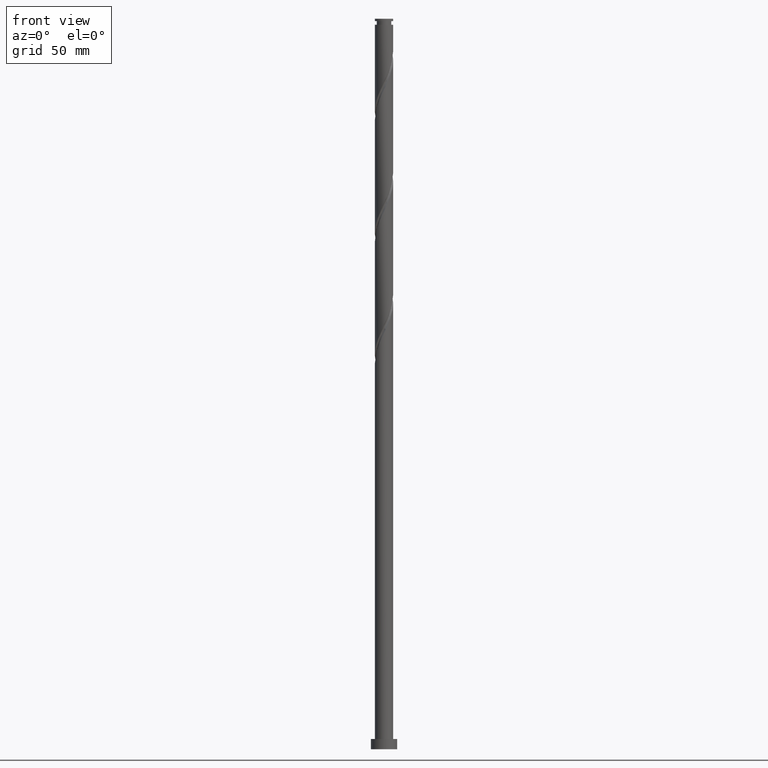
[diagram: clean part render]
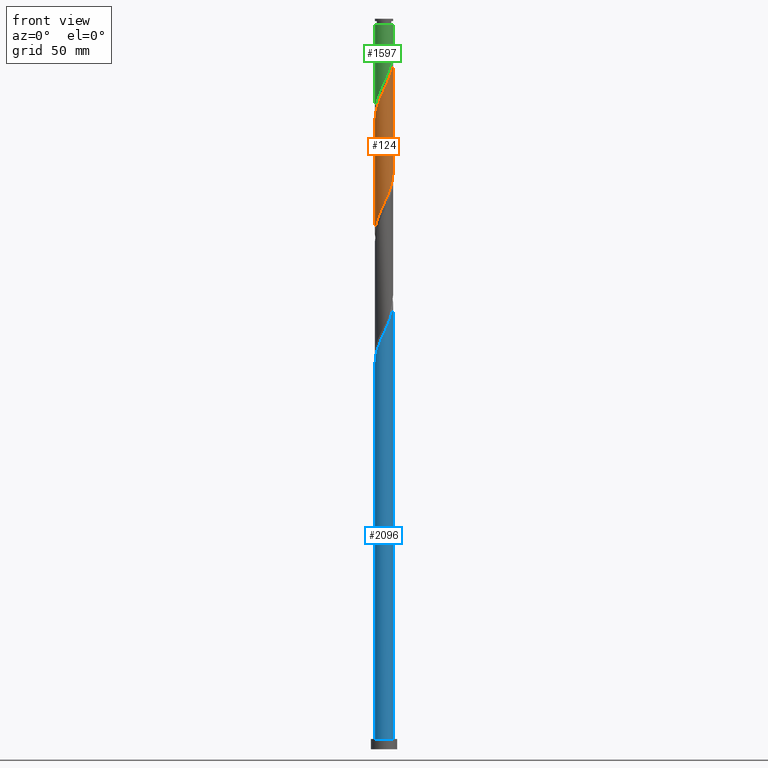
[diagram: same view with three faces highlighted in distinct colors, each labeled with its STEP entity id]
A machine part, front view with three faces highlighted in distinct colors.
Their STEP definitions:

[orange] entity #124 — the highlighted cylindrical surface (edge-blend (fillet) strip) has radius 6.25 mm, axis along (-0, -0, -1).
#17 = CARTESIAN_POINT ( 'NONE',  ( -5.210481989734499386, -3.451576079800707131, 360.4533572271636785 ) ) ;
#26 = CARTESIAN_POINT ( 'NONE',  ( 5.764669318085869243, -2.414764512974176380, 389.0991905604971066 ) ) ;
#47 = CARTESIAN_POINT ( 'NONE',  ( -1.243734296383279592, -6.125000000000000000, 370.8700238938303642 ) ) ;
#88 = EDGE_CURVE ( 'NONE', #2064, #719, #1044, .T. ) ;
#97 = DIRECTION ( 'NONE',  ( -0.000000000000000000, -0.000000000000000000, -1.000000000000000000 ) ) ;
#106 = FACE_OUTER_BOUND ( 'NONE', #1106, .T. ) ;
#124 = ADVANCED_FACE ( 'NONE', ( #106 ), #593, .T. ) ;
#129 = CARTESIAN_POINT ( 'NONE',  ( -1.194875362925339690, -6.134718646121773311, 448.9950238938303073 ) ) ;
#139 = CARTESIAN_POINT ( 'NONE',  ( 2.414764512974176824, -5.764669318085877237, 456.8075238938303642 ) ) ;
#177 = DIRECTION ( 'NONE',  ( -0.000000000000000000, -0.000000000000000000, -1.000000000000000000 ) ) ;
#178 = CARTESIAN_POINT ( 'NONE',  ( -2.982534884002439490, -5.526835772425963356, 366.9637738938303642 ) ) ;
#191 = CARTESIAN_POINT ( 'NONE',  ( -5.550432561628093175, -2.938388396464526764, 359.1512738938303642 ) ) ;
#270 = CARTESIAN_POINT ( 'NONE',  ( 5.550432561628096728, -2.938388396464535202, 465.9221072271636785 ) ) ;
#290 = CARTESIAN_POINT ( 'NONE',  ( -6.250000000000009770, 7.460911258558398260E-15, 430.7131602491668900 ) ) ;
#308 = CARTESIAN_POINT ( 'NONE',  ( 1.243734296383278926, -6.125000000000008882, 454.2033572271636785 ) ) ;
#309 = CARTESIAN_POINT ( 'NONE',  ( -6.250000000000009770, 7.460911258558398260E-15, 430.7131602491668900 ) ) ;
#321 = LINE ( 'NONE', #1830, #1577 ) ;
#336 = CARTESIAN_POINT ( 'NONE',  ( -0.6404744508206484666, -6.247497136254223982, 372.1721072271637354 ) ) ;
#345 = CARTESIAN_POINT ( 'NONE',  ( -6.250000000000000888, 2.911115986695585787E-14, 352.6935542051605239 ) ) ;
#354 = CARTESIAN_POINT ( 'NONE',  ( 5.182805627141495286, -3.492996683547016090, 386.4950238938304210 ) ) ;
#364 = CARTESIAN_POINT ( 'NONE',  ( 6.250000000000001776, 6.297881374636269097E-15, 394.3602208718274369 ) ) ;
#389 = ORIENTED_EDGE ( 'NONE', *, *, #1534, .F. ) ;
#427 = CARTESIAN_POINT ( 'NONE',  ( -6.250000000000007105, -0.01245408358913420964, 430.7395138036840763 ) ) ;
#447 = CARTESIAN_POINT ( 'NONE',  ( 6.017033694790355547, -1.799092411583237183, 468.5262738938305347 ) ) ;
#503 = CARTESIAN_POINT ( 'NONE',  ( 2.368740404023878643, -5.783733128209219920, 378.6825238938303073 ) ) ;
#583 = CARTESIAN_POINT ( 'NONE',  ( -6.249950366853710193, -0.02490806827660202449, 430.7658572271636785 ) ) ;
#593 = CYLINDRICAL_SURFACE ( 'NONE', #648, 6.250000000000000000 ) ;
#594 = CARTESIAN_POINT ( 'NONE',  ( 5.210481989734503827, -3.451576079800713792, 464.6200238938303642 ) ) ;
#648 = AXIS2_PLACEMENT_3D ( 'NONE', #1088, #177, #995 ) ;
#652 = CARTESIAN_POINT ( 'NONE',  ( 1.194875362925335915, -6.134718646121764429, 376.0783572271637354 ) ) ;
#662 = CARTESIAN_POINT ( 'NONE',  ( 4.401769622496961354, -4.436994950466247367, 383.8908572271636785 ) ) ;
#669 = CARTESIAN_POINT ( 'NONE',  ( -6.017033694790346665, -1.799092411583232520, 356.5471072271637922 ) ) ;
#689 = EDGE_CURVE ( 'NONE', #1125, #719, #700, .T. ) ;
#690 = CARTESIAN_POINT ( 'NONE',  ( 6.250000000000001776, 6.297881374636269097E-15, 394.3602208718273801 ) ) ;
#694 = CARTESIAN_POINT ( 'NONE',  ( -4.436994950466247367, -4.401769622496961354, 363.0575238938303642 ) ) ;
#700 =( BOUNDED_CURVE ( )  B_SPLINE_CURVE ( 2, ( #364, #1488, #1466, #1165, #829, #1822, #26, #1791, #354, #1955, #662, #1016, #1185, #1665, #503, #859, #652, #1653, #1006, #336, #47, #984, #1498, #178, #1479, #1812, #694, #1348, #17, #191, #1999, #669, #1313, #1966, #1323 ),
 .UNSPECIFIED., .F., .T. ) 
 B_SPLINE_CURVE_WITH_KNOTS ( ( 3, 2, 2, 2, 2, 2, 2, 2, 2, 2, 2, 2, 2, 2, 2, 2, 2, 3 ),
 ( 0.5545286902180870392, 0.5546875000000000000, 0.5625000000000000000, 0.5703125000000000000, 0.5781250000000000000, 0.5859375000000000000, 0.5937500000000000000, 0.6015625000000000000, 0.6093750000000000000, 0.6171875000000000000, 0.6250000000000000000, 0.6328125000000000000, 0.6406250000000000000, 0.6484375000000000000, 0.6562500000000000000, 0.6640625000000000000, 0.6718750000000000000, 0.6795286902180873723 ),
 .UNSPECIFIED. ) 
 CURVE ( )  GEOMETRIC_REPRESENTATION_ITEM ( )  RATIONAL_B_SPLINE_CURVE ( ( 0.9089165573359441197, 0.9090019243628489898, 0.9090909090909409240, 0.9047133878838470311, 0.9090909090909409240, 0.9047133878838470311, 0.9090909090909409240, 0.9047133878838470311, 0.9090909090909409240, 0.9047133878838470311, 0.9090909090909409240, 0.9047133878838470311, 0.9090909090909409240, 0.9047133878838470311, 0.9090909090909409240, 0.9047133878838470311, 0.9090909090909409240, 0.9047133878838470311, 0.9090909090909409240, 0.9047133878838470311, 0.9090909090909409240, 0.9047133878838470311, 0.9090909090909409240, 0.9047133878838470311, 0.9090909090909409240, 0.9047133878838470311, 0.9090909090909409240, 0.9047133878838470311, 0.9090909090909409240, 0.9047133878838470311, 0.9090909090909409240, 0.9047133878838470311, 0.9090909090909409240, 0.9048023726119387433, 0.9089165573359445638 ) ) 
 REPRESENTATION_ITEM ( '' )  );
#719 = VERTEX_POINT ( 'NONE', #345 ) ;
#760 = CARTESIAN_POINT ( 'NONE',  ( 4.436994950466251808, -4.401769622496967571, 462.0158572271636785 ) ) ;
#772 = CARTESIAN_POINT ( 'NONE',  ( -6.247497136254231975, -0.6404744508206471343, 432.0679405604971066 ) ) ;
#781 = CARTESIAN_POINT ( 'NONE',  ( 5.783733128209226138, -2.368740404023883084, 467.2241905604969929 ) ) ;
#791 = CARTESIAN_POINT ( 'NONE',  ( 4.870531417840913591, -3.964763763136895491, 463.3179405604971066 ) ) ;
#829 = CARTESIAN_POINT ( 'NONE',  ( 6.125000000000000000, -1.243734296383280258, 391.7033572271637354 ) ) ;
#859 = CARTESIAN_POINT ( 'NONE',  ( 1.799092411583232298, -6.017033694790346665, 377.3804405604972203 ) ) ;
#916 = CARTESIAN_POINT ( 'NONE',  ( 6.134718646121773311, -1.194875362925343243, 469.8283572271636785 ) ) ;
#930 = CARTESIAN_POINT ( 'NONE',  ( -3.451576079800712904, -5.210481989734503827, 443.7866905604970498 ) ) ;
#940 = CARTESIAN_POINT ( 'NONE',  ( -5.764669318085877237, -2.414764512974176824, 435.9741905604970498 ) ) ;
#960 = CARTESIAN_POINT ( 'NONE',  ( -4.401769622496965795, -4.436994950466251808, 441.1825238938303073 ) ) ;
#984 = CARTESIAN_POINT ( 'NONE',  ( -1.846994141945911716, -6.002502863745775130, 369.5679405604971066 ) ) ;
#995 = DIRECTION ( 'NONE',  ( -1.000000000000000000, 0.000000000000000000, 0.000000000000000000 ) ) ;
#1006 = CARTESIAN_POINT ( 'NONE',  ( -0.02490806827660287104, -6.249950366853703088, 373.4741905604971066 ) ) ;
#1016 = CARTESIAN_POINT ( 'NONE',  ( 3.964763763136884833, -4.870531417840912702, 382.5887738938304210 ) ) ;
#1044 = LINE ( 'NONE', #1902, #1911 ) ;
#1079 = CARTESIAN_POINT ( 'NONE',  ( 0.6404744508206466902, -6.247497136254231975, 452.9012738938303642 ) ) ;
#1088 = CARTESIAN_POINT ( 'NONE',  ( 0.000000000000000000, 0.000000000000000000, 500.0000000000000000 ) ) ;
#1089 = CARTESIAN_POINT ( 'NONE',  ( 3.492996683547016090, -5.182805627141505944, 459.4116905604970498 ) ) ;
#1106 = EDGE_LOOP ( 'NONE', ( #1631, #389, #1641, #2094 ) ) ;
#1125 = VERTEX_POINT ( 'NONE', #690 ) ;
#1165 = CARTESIAN_POINT ( 'NONE',  ( 6.247497136254223093, -0.6404744508206514642, 393.0054405604971066 ) ) ;
#1185 = CARTESIAN_POINT ( 'NONE',  ( 3.451576079800706687, -5.210481989734500274, 381.2866905604971066 ) ) ;
#1255 = CARTESIAN_POINT ( 'NONE',  ( 0.02490806827660032446, -6.249950366853710193, 451.5991905604970498 ) ) ;
#1276 = CARTESIAN_POINT ( 'NONE',  ( 4.003458483091592690, -4.838775481857040539, 460.7137738938303642 ) ) ;
#1279 = EDGE_CURVE ( 'NONE', #1940, #1125, #321, .T. ) ;
#1313 = CARTESIAN_POINT ( 'NONE',  ( -6.134718646121763541, -1.194875362925336137, 355.2450238938304210 ) ) ;
#1323 = CARTESIAN_POINT ( 'NONE',  ( -6.250000000000001776, 2.911115986695585787E-14, 352.6935542051605239 ) ) ;
#1348 = CARTESIAN_POINT ( 'NONE',  ( -4.870531417840910038, -3.964763763136889274, 361.7554405604971635 ) ) ;
#1367 =( BOUNDED_CURVE ( )  B_SPLINE_CURVE ( 2, ( #290, #427, #583, #772, #1416, #1753, #940, #1394, #1885, #2074, #960, #1590, #930, #1763, #1581, #1404, #129, #2057, #1255, #1079, #308, #1721, #139, #1905, #1089, #1276, #760, #791, #594, #270, #781, #447, #916, #1426, #1732 ),
 .UNSPECIFIED., .F., .T. ) 
 B_SPLINE_CURVE_WITH_KNOTS ( ( 3, 2, 2, 2, 2, 2, 2, 2, 2, 2, 2, 2, 2, 2, 2, 2, 2, 3 ),
 ( 0.5545286902180872612, 0.5546875000000000000, 0.5625000000000000000, 0.5703125000000000000, 0.5781250000000000000, 0.5859375000000000000, 0.5937500000000000000, 0.6015625000000000000, 0.6093750000000000000, 0.6171875000000000000, 0.6250000000000000000, 0.6328125000000000000, 0.6406250000000000000, 0.6484375000000000000, 0.6562500000000000000, 0.6640625000000000000, 0.6718750000000000000, 0.6795286902180870392 ),
 .UNSPECIFIED. ) 
 CURVE ( )  GEOMETRIC_REPRESENTATION_ITEM ( )  RATIONAL_B_SPLINE_CURVE ( ( 0.9089165573359503369, 0.9090019243628550960, 0.9090909090909468082, 0.9047133878838528043, 0.9090909090909468082, 0.9047133878838528043, 0.9090909090909468082, 0.9047133878838528043, 0.9090909090909468082, 0.9047133878838528043, 0.9090909090909468082, 0.9047133878838528043, 0.9090909090909468082, 0.9047133878838528043, 0.9090909090909468082, 0.9047133878838528043, 0.9090909090909468082, 0.9047133878838528043, 0.9090909090909468082, 0.9047133878838528043, 0.9090909090909468082, 0.9047133878838528043, 0.9090909090909468082, 0.9047133878838528043, 0.9090909090909468082, 0.9047133878838528043, 0.9090909090909468082, 0.9047133878838528043, 0.9090909090909468082, 0.9047133878838528043, 0.9090909090909468082, 0.9047133878838528043, 0.9090909090909468082, 0.9048023726119447385, 0.9089165573359500039 ) ) 
 REPRESENTATION_ITEM ( '' )  );
#1394 = CARTESIAN_POINT ( 'NONE',  ( -5.526835772425973126, -2.982534884002440823, 437.2762738938303642 ) ) ;
#1404 = CARTESIAN_POINT ( 'NONE',  ( -1.799092411583237183, -6.017033694790354659, 447.6929405604970498 ) ) ;
#1416 = CARTESIAN_POINT ( 'NONE',  ( -6.125000000000008882, -1.243734296383279592, 433.3700238938302505 ) ) ;
#1426 = CARTESIAN_POINT ( 'NONE',  ( 6.250000000000005329, -0.6029988433061495012, 471.1038468104176218 ) ) ;
#1466 = CARTESIAN_POINT ( 'NONE',  ( 6.249950366853703088, -0.02490806827660308961, 394.3075238938304210 ) ) ;
#1479 = CARTESIAN_POINT ( 'NONE',  ( -3.492996683547012982, -5.182805627141497062, 365.6616905604971066 ) ) ;
#1488 = CARTESIAN_POINT ( 'NONE',  ( 6.250000000000000888, -0.01245408358911791191, 394.3338673173100233 ) ) ;
#1498 = CARTESIAN_POINT ( 'NONE',  ( -2.414764512974176380, -5.764669318085871019, 368.2658572271637922 ) ) ;
#1534 = EDGE_CURVE ( 'NONE', #2064, #1940, #1367, .T. ) ;
#1561 = DIRECTION ( 'NONE',  ( -0.000000000000000000, -0.000000000000000000, -1.000000000000000000 ) ) ;
#1577 = VECTOR ( 'NONE', #97, 1000.000000000000000 ) ;
#1581 = CARTESIAN_POINT ( 'NONE',  ( -2.368740404023883084, -5.783733128209227026, 446.3908572271636785 ) ) ;
#1590 = CARTESIAN_POINT ( 'NONE',  ( -3.964763763136895491, -4.870531417840916255, 442.4846072271636785 ) ) ;
#1613 = CARTESIAN_POINT ( 'NONE',  ( 6.250000000000007994, -8.294043242714179660E-16, 472.3798269158335188 ) ) ;
#1631 = ORIENTED_EDGE ( 'NONE', *, *, #1279, .F. ) ;
#1641 = ORIENTED_EDGE ( 'NONE', *, *, #88, .T. ) ;
#1653 = CARTESIAN_POINT ( 'NONE',  ( 0.5906583142674398657, -6.252403597453183082, 374.7762738938305347 ) ) ;
#1665 = CARTESIAN_POINT ( 'NONE',  ( 2.938388396464525876, -5.550432561628093175, 379.9846072271638491 ) ) ;
#1721 = CARTESIAN_POINT ( 'NONE',  ( 1.846994141945911938, -6.002502863745784900, 455.5054405604971066 ) ) ;
#1732 = CARTESIAN_POINT ( 'NONE',  ( 6.250000000000007994, -8.294043242714179660E-16, 472.3798269158335756 ) ) ;
#1753 = CARTESIAN_POINT ( 'NONE',  ( -6.002502863745784900, -1.846994141945912382, 434.6721072271637354 ) ) ;
#1763 = CARTESIAN_POINT ( 'NONE',  ( -2.938388396464533425, -5.550432561628098505, 445.0887738938304210 ) ) ;
#1791 = CARTESIAN_POINT ( 'NONE',  ( 5.526835772425963356, -2.982534884002439490, 387.7971072271638491 ) ) ;
#1812 = CARTESIAN_POINT ( 'NONE',  ( -4.003458483091587361, -4.838775481857032545, 364.3596072271636785 ) ) ;
#1822 = CARTESIAN_POINT ( 'NONE',  ( 6.002502863745776018, -1.846994141945909940, 390.4012738938304210 ) ) ;
#1830 = CARTESIAN_POINT ( 'NONE',  ( 6.250000000000000000, 7.654042494670957606E-16, 500.0000000000000000 ) ) ;
#1885 = CARTESIAN_POINT ( 'NONE',  ( -5.182805627141505944, -3.492996683547016534, 438.5783572271636785 ) ) ;
#1902 = CARTESIAN_POINT ( 'NONE',  ( -6.250000000000000000, 0.000000000000000000, 500.0000000000000000 ) ) ;
#1905 = CARTESIAN_POINT ( 'NONE',  ( 2.982534884002440823, -5.526835772425973126, 458.1096072271637922 ) ) ;
#1911 = VECTOR ( 'NONE', #1561, 1000.000000000000000 ) ;
#1940 = VERTEX_POINT ( 'NONE', #1613 ) ;
#1955 = CARTESIAN_POINT ( 'NONE',  ( 4.838775481857031657, -4.003458483091587361, 385.1929405604971066 ) ) ;
#1966 = CARTESIAN_POINT ( 'NONE',  ( -6.250000000000003553, -0.6029988433061200803, 353.9695343105765915 ) ) ;
#1999 = CARTESIAN_POINT ( 'NONE',  ( -5.783733128209219920, -2.368740404023878643, 357.8491905604969929 ) ) ;
#2057 = CARTESIAN_POINT ( 'NONE',  ( -0.5906583142674434184, -6.252403597453189299, 450.2971072271636785 ) ) ;
#2064 = VERTEX_POINT ( 'NONE', #309 ) ;
#2074 = CARTESIAN_POINT ( 'NONE',  ( -4.838775481857040539, -4.003458483091592690, 439.8804405604969929 ) ) ;
#2094 = ORIENTED_EDGE ( 'NONE', *, *, #689, .F. ) ;

[blue] entity #2096 — the highlighted cylindrical surface (edge-blend (fillet) strip) has radius 6.25 mm, axis along (-0, -0, -1).
#9 = CARTESIAN_POINT ( 'NONE',  ( 5.210481989734503827, -3.451576079800713792, 297.9533572271637354 ) ) ;
#15 = DIRECTION ( 'NONE',  ( 1.000000000000000000, 0.000000000000000000, 0.000000000000000000 ) ) ;
#16 = CARTESIAN_POINT ( 'NONE',  ( -5.182805627141505944, -3.492996683547016534, 271.9116905604970498 ) ) ;
#38 = VERTEX_POINT ( 'NONE', #340 ) ;
#42 = CARTESIAN_POINT ( 'NONE',  ( 4.003458483091592690, -4.838775481857040539, 294.0471072271637354 ) ) ;
#52 = CARTESIAN_POINT ( 'NONE',  ( 4.436994950466251808, -4.401769622496967571, 295.3491905604971066 ) ) ;
#105 = CARTESIAN_POINT ( 'NONE',  ( -4.401769622496965795, -4.436994950466251808, 274.5158572271636785 ) ) ;
#118 = CARTESIAN_POINT ( 'NONE',  ( 0.02490806827660032446, -6.249950366853710193, 284.9325238938303642 ) ) ;
#152 = DIRECTION ( 'NONE',  ( -1.000000000000000000, 0.000000000000000000, 0.000000000000000000 ) ) ;
#176 = EDGE_CURVE ( 'NONE', #38, #1453, #484, .T. ) ;
#185 = CARTESIAN_POINT ( 'NONE',  ( 5.783733128209226138, -2.368740404023883084, 300.5575238938303642 ) ) ;
#238 = DIRECTION ( 'NONE',  ( -0.000000000000000000, -0.000000000000000000, -1.000000000000000000 ) ) ;
#295 = ORIENTED_EDGE ( 'NONE', *, *, #1188, .F. ) ;
#331 = DIRECTION ( 'NONE',  ( -0.000000000000000000, -0.000000000000000000, -1.000000000000000000 ) ) ;
#335 = DIRECTION ( 'NONE',  ( 0.000000000000000000, 0.000000000000000000, 1.000000000000000000 ) ) ;
#340 = CARTESIAN_POINT ( 'NONE',  ( -6.250000000000009770, 7.460911258558398260E-15, 264.0464935825003181 ) ) ;
#363 = CARTESIAN_POINT ( 'NONE',  ( -5.526835772425973126, -2.982534884002440823, 270.6096072271637354 ) ) ;
#414 = CARTESIAN_POINT ( 'NONE',  ( -3.451576079800712904, -5.210481989734503827, 277.1200238938303642 ) ) ;
#436 = CARTESIAN_POINT ( 'NONE',  ( 6.250000000000008882, 7.878409165607379030E-15, 305.7131602491668900 ) ) ;
#471 = DIRECTION ( 'NONE',  ( -0.000000000000000000, -0.000000000000000000, -1.000000000000000000 ) ) ;
#484 =( BOUNDED_CURVE ( )  B_SPLINE_CURVE ( 2, ( #1174, #1965, #642, #1478, #502, #1294, #1821, #363, #16, #1873, #105, #1730, #414, #747, #1579, #1263, #581, #1232, #118, #1588, #759, #770, #1414, #602, #1253, #42, #52, #1234, #9, #674, #185, #833, #688, #1341, #858 ),
 .UNSPECIFIED., .F., .T. ) 
 B_SPLINE_CURVE_WITH_KNOTS ( ( 3, 2, 2, 2, 2, 2, 2, 2, 2, 2, 2, 2, 2, 2, 2, 2, 2, 3 ),
 ( 0.05452869021808727512, 0.05468750000000000000, 0.06250000000000000000, 0.07031250000000000000, 0.07812500000000000000, 0.08593750000000000000, 0.09375000000000000000, 0.1015625000000000000, 0.1093750000000000000, 0.1171875000000000000, 0.1250000000000000000, 0.1328125000000000000, 0.1406250000000000000, 0.1484375000000000000, 0.1562500000000000000, 0.1640625000000000000, 0.1718750000000000000, 0.1795286902180874278 ),
 .UNSPECIFIED. ) 
 CURVE ( )  GEOMETRIC_REPRESENTATION_ITEM ( )  RATIONAL_B_SPLINE_CURVE ( ( 0.9089165573359502259, 0.9090019243628549850, 0.9090909090909468082, 0.9047133878838528043, 0.9090909090909468082, 0.9047133878838528043, 0.9090909090909468082, 0.9047133878838528043, 0.9090909090909468082, 0.9047133878838528043, 0.9090909090909468082, 0.9047133878838528043, 0.9090909090909468082, 0.9047133878838528043, 0.9090909090909468082, 0.9047133878838528043, 0.9090909090909468082, 0.9047133878838528043, 0.9090909090909468082, 0.9047133878838528043, 0.9090909090909468082, 0.9047133878838528043, 0.9090909090909468082, 0.9047133878838528043, 0.9090909090909468082, 0.9047133878838528043, 0.9090909090909468082, 0.9047133878838528043, 0.9090909090909468082, 0.9047133878838528043, 0.9090909090909468082, 0.9047133878838528043, 0.9090909090909468082, 0.9048023726119445165, 0.9089165573359504480 ) ) 
 REPRESENTATION_ITEM ( '' )  );
#497 = EDGE_CURVE ( 'NONE', #1930, #1926, #793, .T. ) ;
#502 = CARTESIAN_POINT ( 'NONE',  ( -6.125000000000008882, -1.243734296383279592, 266.7033572271637354 ) ) ;
#535 = ORIENTED_EDGE ( 'NONE', *, *, #176, .F. ) ;
#581 = CARTESIAN_POINT ( 'NONE',  ( -1.194875362925339690, -6.134718646121773311, 282.3283572271636785 ) ) ;
#602 = CARTESIAN_POINT ( 'NONE',  ( 2.982534884002440823, -5.526835772425973126, 291.4429405604971066 ) ) ;
#606 = CARTESIAN_POINT ( 'NONE',  ( 6.250000000000000000, 7.654042494670957606E-16, 7.000000000000000000 ) ) ;
#618 = ORIENTED_EDGE ( 'NONE', *, *, #1307, .T. ) ;
#623 = ORIENTED_EDGE ( 'NONE', *, *, #497, .T. ) ;
#642 = CARTESIAN_POINT ( 'NONE',  ( -6.249950366853710193, -0.02490806827660202449, 264.0991905604971066 ) ) ;
#674 = CARTESIAN_POINT ( 'NONE',  ( 5.550432561628096728, -2.938388396464535202, 299.2554405604970498 ) ) ;
#688 = CARTESIAN_POINT ( 'NONE',  ( 6.134718646121773311, -1.194875362925343243, 303.1616905604970498 ) ) ;
#747 = CARTESIAN_POINT ( 'NONE',  ( -2.938388396464533425, -5.550432561628098505, 278.4221072271637354 ) ) ;
#752 = CARTESIAN_POINT ( 'NONE',  ( 0.000000000000000000, 0.000000000000000000, 7.000000000000000000 ) ) ;
#759 = CARTESIAN_POINT ( 'NONE',  ( 1.243734296383278926, -6.125000000000008882, 287.5366905604969929 ) ) ;
#770 = CARTESIAN_POINT ( 'NONE',  ( 1.846994141945911938, -6.002502863745784900, 288.8387738938303642 ) ) ;
#793 = CIRCLE ( 'NONE', #927, 6.250000000000000000 ) ;
#833 = CARTESIAN_POINT ( 'NONE',  ( 6.017033694790355547, -1.799092411583237183, 301.8596072271637354 ) ) ;
#858 = CARTESIAN_POINT ( 'NONE',  ( 6.250000000000008882, 7.878409165607379030E-15, 305.7131602491668900 ) ) ;
#927 = AXIS2_PLACEMENT_3D ( 'NONE', #752, #335, #15 ) ;
#1022 = LINE ( 'NONE', #1181, #1438 ) ;
#1174 = CARTESIAN_POINT ( 'NONE',  ( -6.250000000000008882, 7.460911258558398260E-15, 264.0464935825003181 ) ) ;
#1181 = CARTESIAN_POINT ( 'NONE',  ( -6.250000000000000000, 0.000000000000000000, 500.0000000000000000 ) ) ;
#1188 = EDGE_CURVE ( 'NONE', #1453, #1926, #1485, .T. ) ;
#1232 = CARTESIAN_POINT ( 'NONE',  ( -0.5906583142674434184, -6.252403597453189299, 283.6304405604971066 ) ) ;
#1234 = CARTESIAN_POINT ( 'NONE',  ( 4.870531417840913591, -3.964763763136895491, 296.6512738938303642 ) ) ;
#1237 = CYLINDRICAL_SURFACE ( 'NONE', #1547, 6.250000000000000000 ) ;
#1253 = CARTESIAN_POINT ( 'NONE',  ( 3.492996683547016090, -5.182805627141505944, 292.7450238938303642 ) ) ;
#1263 = CARTESIAN_POINT ( 'NONE',  ( -1.799092411583237183, -6.017033694790354659, 281.0262738938303642 ) ) ;
#1278 = FACE_OUTER_BOUND ( 'NONE', #1462, .T. ) ;
#1294 = CARTESIAN_POINT ( 'NONE',  ( -6.002502863745784900, -1.846994141945912382, 268.0054405604970498 ) ) ;
#1307 = EDGE_CURVE ( 'NONE', #38, #1930, #1022, .T. ) ;
#1341 = CARTESIAN_POINT ( 'NONE',  ( 6.250000000000012434, -0.6029988433061194142, 304.4371801437509362 ) ) ;
#1414 = CARTESIAN_POINT ( 'NONE',  ( 2.414764512974176824, -5.764669318085877237, 290.1408572271636785 ) ) ;
#1438 = VECTOR ( 'NONE', #238, 1000.000000000000000 ) ;
#1453 = VERTEX_POINT ( 'NONE', #436 ) ;
#1462 = EDGE_LOOP ( 'NONE', ( #295, #535, #618, #623 ) ) ;
#1478 = CARTESIAN_POINT ( 'NONE',  ( -6.247497136254231975, -0.6404744508206471343, 265.4012738938304210 ) ) ;
#1485 = LINE ( 'NONE', #1643, #2053 ) ;
#1547 = AXIS2_PLACEMENT_3D ( 'NONE', #1929, #471, #152 ) ;
#1579 = CARTESIAN_POINT ( 'NONE',  ( -2.368740404023883084, -5.783733128209227026, 279.7241905604970498 ) ) ;
#1588 = CARTESIAN_POINT ( 'NONE',  ( 0.6404744508206466902, -6.247497136254231975, 286.2346072271637922 ) ) ;
#1643 = CARTESIAN_POINT ( 'NONE',  ( 6.250000000000000000, 7.654042494670957606E-16, 500.0000000000000000 ) ) ;
#1730 = CARTESIAN_POINT ( 'NONE',  ( -3.964763763136895491, -4.870531417840916255, 275.8179405604970498 ) ) ;
#1821 = CARTESIAN_POINT ( 'NONE',  ( -5.764669318085877237, -2.414764512974176824, 269.3075238938303642 ) ) ;
#1873 = CARTESIAN_POINT ( 'NONE',  ( -4.838775481857040539, -4.003458483091592690, 273.2137738938303642 ) ) ;
#1926 = VERTEX_POINT ( 'NONE', #606 ) ;
#1929 = CARTESIAN_POINT ( 'NONE',  ( 0.000000000000000000, 0.000000000000000000, 500.0000000000000000 ) ) ;
#1930 = VERTEX_POINT ( 'NONE', #2076 ) ;
#1965 = CARTESIAN_POINT ( 'NONE',  ( -6.250000000000008882, -0.01245408358913530078, 264.0728471370175612 ) ) ;
#2053 = VECTOR ( 'NONE', #331, 1000.000000000000000 ) ;
#2076 = CARTESIAN_POINT ( 'NONE',  ( -6.250000000000000000, 0.000000000000000000, 7.000000000000000000 ) ) ;
#2096 = ADVANCED_FACE ( 'NONE', ( #1278 ), #1237, .T. ) ;

[green] entity #1597 — the highlighted cylindrical surface (edge-blend (fillet) strip) has radius 6.25 mm, axis along (-0, -0, -1).
#85 = CARTESIAN_POINT ( 'NONE',  ( -1.243734296383279592, -6.125000000000000000, 454.2033572271636785 ) ) ;
#103 = CARTESIAN_POINT ( 'NONE',  ( -0.02490806827660287104, -6.249950366853703088, 456.8075238938303642 ) ) ;
#107 = DIRECTION ( 'NONE',  ( -1.000000000000000000, 0.000000000000000000, 0.000000000000000000 ) ) ;
#116 = CARTESIAN_POINT ( 'NONE',  ( -4.870531417840910038, -3.964763763136889274, 445.0887738938304778 ) ) ;
#136 = CARTESIAN_POINT ( 'NONE',  ( 6.250000000000000000, 7.654042494670957606E-16, 500.0000000000000000 ) ) ;
#181 = VECTOR ( 'NONE', #455, 1000.000000000000000 ) ;
#209 = VERTEX_POINT ( 'NONE', #1205 ) ;
#211 =( BOUNDED_CURVE ( )  B_SPLINE_CURVE ( 2, ( #267, #1701, #1550, #402, #757, #723, #1374, #412, #1221, #1892, #1558, #591, #1871, #433, #1728, #2026, #247, #1086, #103, #1210, #85, #924, #914, #1250, #277, #1710, #1055, #116, #736, #259, #1576, #560, #886, #1401, #1536 ),
 .UNSPECIFIED., .F., .T. ) 
 B_SPLINE_CURVE_WITH_KNOTS ( ( 3, 2, 2, 2, 2, 2, 2, 2, 2, 2, 2, 2, 2, 2, 2, 2, 2, 3 ),
 ( 0.3045286902180872057, 0.3046875000000000000, 0.3125000000000000000, 0.3203125000000000000, 0.3281250000000000000, 0.3359375000000000000, 0.3437500000000000000, 0.3515625000000000000, 0.3593750000000000000, 0.3671875000000000000, 0.3750000000000000000, 0.3828125000000000000, 0.3906250000000000000, 0.3984375000000000000, 0.4062500000000000000, 0.4140625000000000000, 0.4218750000000000000, 0.4295286902180868172 ),
 .UNSPECIFIED. ) 
 CURVE ( )  GEOMETRIC_REPRESENTATION_ITEM ( )  RATIONAL_B_SPLINE_CURVE ( ( 0.9089165573359443417, 0.9090019243628491008, 0.9090909090909409240, 0.9047133878838470311, 0.9090909090909409240, 0.9047133878838470311, 0.9090909090909409240, 0.9047133878838470311, 0.9090909090909409240, 0.9047133878838470311, 0.9090909090909409240, 0.9047133878838470311, 0.9090909090909409240, 0.9047133878838470311, 0.9090909090909409240, 0.9047133878838470311, 0.9090909090909409240, 0.9047133878838470311, 0.9090909090909409240, 0.9047133878838470311, 0.9090909090909409240, 0.9047133878838470311, 0.9090909090909409240, 0.9047133878838470311, 0.9090909090909409240, 0.9047133878838470311, 0.9090909090909409240, 0.9047133878838470311, 0.9090909090909409240, 0.9047133878838470311, 0.9090909090909409240, 0.9047133878838470311, 0.9090909090909409240, 0.9048023726119390764, 0.9089165573359438977 ) ) 
 REPRESENTATION_ITEM ( '' )  );
#247 = CARTESIAN_POINT ( 'NONE',  ( 1.194875362925335915, -6.134718646121764429, 459.4116905604970498 ) ) ;
#259 = CARTESIAN_POINT ( 'NONE',  ( -5.550432561628093175, -2.938388396464526764, 442.4846072271637354 ) ) ;
#267 = CARTESIAN_POINT ( 'NONE',  ( 6.250000000000000888, -2.406204455358219290E-15, 477.6935542051606376 ) ) ;
#277 = CARTESIAN_POINT ( 'NONE',  ( -3.492996683547012982, -5.182805627141497062, 448.9950238938303642 ) ) ;
#402 = CARTESIAN_POINT ( 'NONE',  ( 6.247497136254223093, -0.6404744508206514642, 476.3387738938303642 ) ) ;
#412 = CARTESIAN_POINT ( 'NONE',  ( 5.526835772425963356, -2.982534884002439490, 471.1304405604971066 ) ) ;
#433 = CARTESIAN_POINT ( 'NONE',  ( 2.938388396464525876, -5.550432561628093175, 463.3179405604971635 ) ) ;
#435 = EDGE_CURVE ( 'NONE', #209, #941, #540, .T. ) ;
#441 = EDGE_LOOP ( 'NONE', ( #1111, #1620, #1606, #1371 ) ) ;
#455 = DIRECTION ( 'NONE',  ( -0.000000000000000000, -0.000000000000000000, -1.000000000000000000 ) ) ;
#459 = FACE_OUTER_BOUND ( 'NONE', #441, .T. ) ;
#499 = CARTESIAN_POINT ( 'NONE',  ( -6.250000000000001776, -5.714502602732998739E-15, 436.0268875384940657 ) ) ;
#513 = DIRECTION ( 'NONE',  ( -1.000000000000000000, 0.000000000000000000, 0.000000000000000000 ) ) ;
#523 = EDGE_CURVE ( 'NONE', #1001, #209, #1195, .T. ) ;
#540 = LINE ( 'NONE', #2100, #181 ) ;
#560 = CARTESIAN_POINT ( 'NONE',  ( -6.017033694790346665, -1.799092411583232520, 439.8804405604971066 ) ) ;
#591 = CARTESIAN_POINT ( 'NONE',  ( 3.964763763136884833, -4.870531417840912702, 465.9221072271637922 ) ) ;
#615 = CARTESIAN_POINT ( 'NONE',  ( 6.250000000000000888, -2.406204455358218895E-15, 477.6935542051606376 ) ) ;
#619 = AXIS2_PLACEMENT_3D ( 'NONE', #950, #1611, #107 ) ;
#723 = CARTESIAN_POINT ( 'NONE',  ( 6.002502863745776018, -1.846994141945909940, 473.7346072271637354 ) ) ;
#736 = CARTESIAN_POINT ( 'NONE',  ( -5.210481989734499386, -3.451576079800707131, 443.7866905604970498 ) ) ;
#757 = CARTESIAN_POINT ( 'NONE',  ( 6.125000000000000000, -1.243734296383280258, 475.0366905604971066 ) ) ;
#826 = AXIS2_PLACEMENT_3D ( 'NONE', #1636, #1834, #513 ) ;
#886 = CARTESIAN_POINT ( 'NONE',  ( -6.134718646121763541, -1.194875362925336137, 438.5783572271636785 ) ) ;
#914 = CARTESIAN_POINT ( 'NONE',  ( -2.414764512974176380, -5.764669318085871019, 451.5991905604970498 ) ) ;
#924 = CARTESIAN_POINT ( 'NONE',  ( -1.846994141945911716, -6.002502863745775130, 452.9012738938303642 ) ) ;
#941 = VERTEX_POINT ( 'NONE', #499 ) ;
#950 = CARTESIAN_POINT ( 'NONE',  ( 0.000000000000000000, 0.000000000000000000, 500.0000000000000000 ) ) ;
#981 = CARTESIAN_POINT ( 'NONE',  ( 6.249999999999952038, 7.654042494670928024E-16, 495.8700238938303642 ) ) ;
#1001 = VERTEX_POINT ( 'NONE', #981 ) ;
#1055 = CARTESIAN_POINT ( 'NONE',  ( -4.436994950466247367, -4.401769622496961354, 446.3908572271636217 ) ) ;
#1086 = CARTESIAN_POINT ( 'NONE',  ( 0.5906583142674398657, -6.252403597453183082, 458.1096072271637354 ) ) ;
#1111 = ORIENTED_EDGE ( 'NONE', *, *, #1746, .F. ) ;
#1118 = DIRECTION ( 'NONE',  ( -0.000000000000000000, -0.000000000000000000, -1.000000000000000000 ) ) ;
#1164 = VECTOR ( 'NONE', #1118, 1000.000000000000000 ) ;
#1195 = CIRCLE ( 'NONE', #826, 6.249999999999952038 ) ;
#1205 = CARTESIAN_POINT ( 'NONE',  ( -6.249999999999952038, 0.000000000000000000, 495.8700238938303642 ) ) ;
#1210 = CARTESIAN_POINT ( 'NONE',  ( -0.6404744508206484666, -6.247497136254223982, 455.5054405604970498 ) ) ;
#1221 = CARTESIAN_POINT ( 'NONE',  ( 5.182805627141495286, -3.492996683547016090, 469.8283572271636785 ) ) ;
#1250 = CARTESIAN_POINT ( 'NONE',  ( -2.982534884002439490, -5.526835772425963356, 450.2971072271637354 ) ) ;
#1371 = ORIENTED_EDGE ( 'NONE', *, *, #1695, .F. ) ;
#1374 = CARTESIAN_POINT ( 'NONE',  ( 5.764669318085869243, -2.414764512974176380, 472.4325238938303642 ) ) ;
#1401 = CARTESIAN_POINT ( 'NONE',  ( -6.249999999999995559, -0.6029988433061631570, 437.3028676439100764 ) ) ;
#1459 = LINE ( 'NONE', #136, #1164 ) ;
#1536 = CARTESIAN_POINT ( 'NONE',  ( -6.250000000000001776, -5.714502602732998739E-15, 436.0268875384940657 ) ) ;
#1550 = CARTESIAN_POINT ( 'NONE',  ( 6.249950366853703088, -0.02490806827660308961, 477.6408572271637354 ) ) ;
#1558 = CARTESIAN_POINT ( 'NONE',  ( 4.401769622496961354, -4.436994950466247367, 467.2241905604970498 ) ) ;
#1576 = CARTESIAN_POINT ( 'NONE',  ( -5.783733128209219920, -2.368740404023878643, 441.1825238938303642 ) ) ;
#1595 = VERTEX_POINT ( 'NONE', #615 ) ;
#1597 = ADVANCED_FACE ( 'NONE', ( #459 ), #1927, .T. ) ;
#1606 = ORIENTED_EDGE ( 'NONE', *, *, #435, .T. ) ;
#1611 = DIRECTION ( 'NONE',  ( -0.000000000000000000, -0.000000000000000000, -1.000000000000000000 ) ) ;
#1620 = ORIENTED_EDGE ( 'NONE', *, *, #523, .T. ) ;
#1636 = CARTESIAN_POINT ( 'NONE',  ( 0.000000000000000000, 0.000000000000000000, 495.8700238938303642 ) ) ;
#1695 = EDGE_CURVE ( 'NONE', #1595, #941, #211, .T. ) ;
#1701 = CARTESIAN_POINT ( 'NONE',  ( 6.250000000000000888, -0.01245408358913097091, 477.6672006506433945 ) ) ;
#1710 = CARTESIAN_POINT ( 'NONE',  ( -4.003458483091587361, -4.838775481857032545, 447.6929405604971066 ) ) ;
#1728 = CARTESIAN_POINT ( 'NONE',  ( 2.368740404023878643, -5.783733128209219920, 462.0158572271637354 ) ) ;
#1746 = EDGE_CURVE ( 'NONE', #1001, #1595, #1459, .T. ) ;
#1834 = DIRECTION ( 'NONE',  ( -0.000000000000000000, -0.000000000000000000, -1.000000000000000000 ) ) ;
#1871 = CARTESIAN_POINT ( 'NONE',  ( 3.451576079800706687, -5.210481989734500274, 464.6200238938303642 ) ) ;
#1892 = CARTESIAN_POINT ( 'NONE',  ( 4.838775481857031657, -4.003458483091587361, 468.5262738938304778 ) ) ;
#1927 = CYLINDRICAL_SURFACE ( 'NONE', #619, 6.250000000000000000 ) ;
#2026 = CARTESIAN_POINT ( 'NONE',  ( 1.799092411583232298, -6.017033694790346665, 460.7137738938304210 ) ) ;
#2100 = CARTESIAN_POINT ( 'NONE',  ( -6.250000000000000000, 0.000000000000000000, 500.0000000000000000 ) ) ;